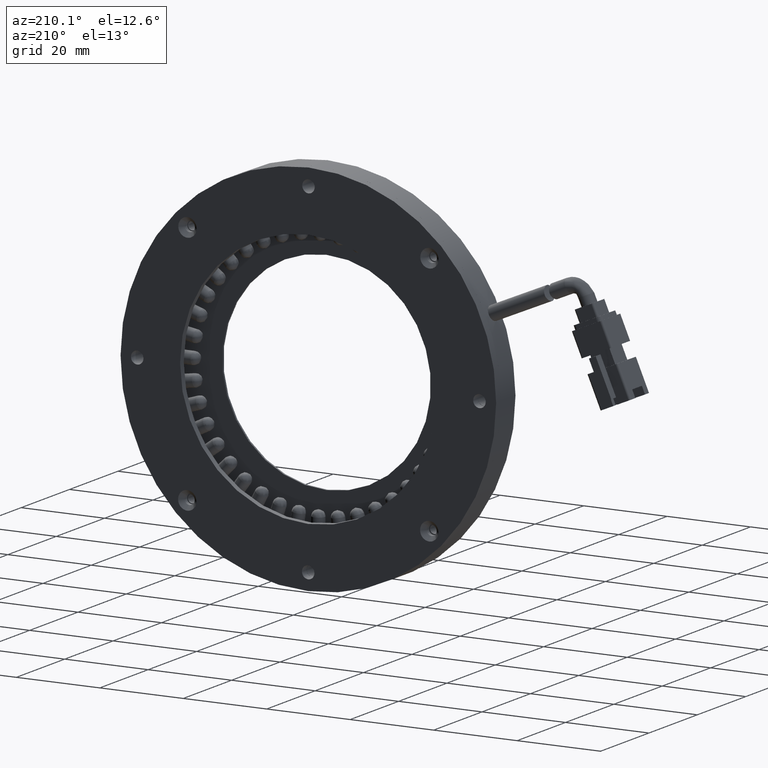
[diagram: clean part render]
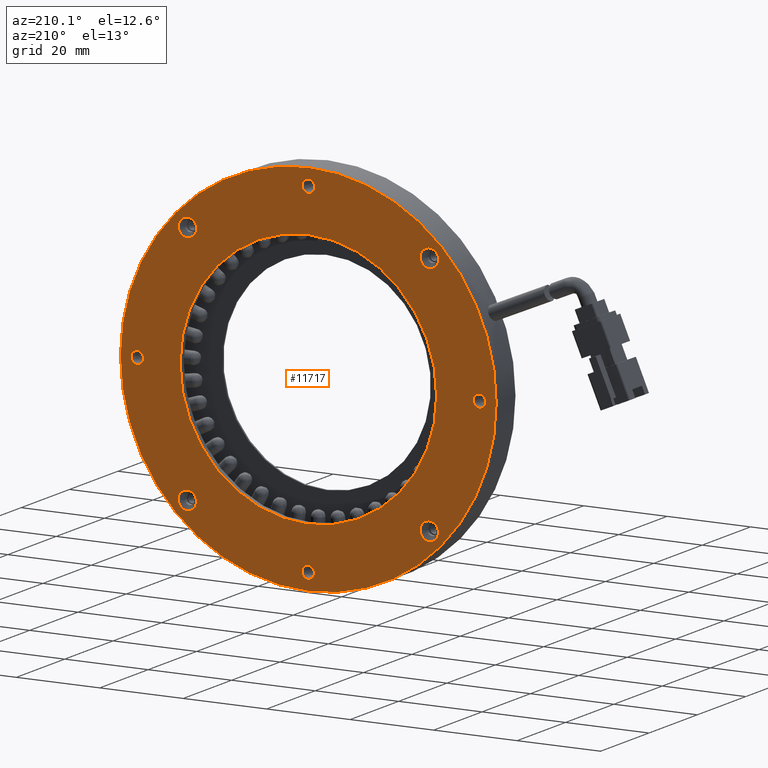
[diagram: same view with one face highlighted and labeled with its STEP entity id]
A machine part, auxiliary view. The second image highlights one B-rep face of the part: STEP entity #11717.
In plain terms, the highlighted planar face has unit normal (0, -1, 0).
Its self-contained STEP definition (entity closure, byte-faithful):
#245 = DIRECTION ( 'NONE',  ( -1.163897087407499700E-016, 1.000000000000000000, -2.939373556709199600E-017 ) ) ;
#446 = FACE_OUTER_BOUND ( 'NONE', #17321, .T. ) ;
#608 = CIRCLE ( 'NONE', #7499, 1.499999999999996700 ) ;
#1196 = EDGE_CURVE ( 'NONE', #20708, #14340, #3406, .T. ) ;
#1226 = EDGE_CURVE ( 'NONE', #38113, #23589, #13167, .T. ) ;
#1408 = CARTESIAN_POINT ( 'NONE',  ( 34.14104945310195700, 7.623552123552124200, -27.41055050798560400 ) ) ;
#1472 = FACE_BOUND ( 'NONE', #2171, .T. ) ;
#1908 = DIRECTION ( 'NONE',  ( -1.163897087407499700E-016, 1.000000000000000000, -2.939373556709199600E-017 ) ) ;
#2171 = EDGE_LOOP ( 'NONE', ( #28088, #8177 ) ) ;
#2174 = EDGE_CURVE ( 'NONE', #6445, #8785, #30070, .T. ) ;
#2336 = DIRECTION ( 'NONE',  ( -0.7065235946279202500, 0.0000000000000000000, -0.7076894871580629000 ) ) ;
#2462 = DIRECTION ( 'NONE',  ( -1.163897087407499700E-016, 1.000000000000000000, -2.939373556709199600E-017 ) ) ;
#2539 = ORIENTED_EDGE ( 'NONE', *, *, #35327, .F. ) ;
#2794 = CIRCLE ( 'NONE', #12913, 2.199999999962528800 ) ;
#2841 = AXIS2_PLACEMENT_3D ( 'NONE', #10261, #32289, #13397 ) ;
#3036 = DIRECTION ( 'NONE',  ( -1.163897087407499700E-016, 1.000000000000000000, -2.939373556709199600E-017 ) ) ;
#3216 = DIRECTION ( 'NONE',  ( 0.7065235946279214700, 0.0000000000000000000, 0.7076894871580619000 ) ) ;
#3235 = CARTESIAN_POINT ( 'NONE',  ( -38.48834288763067900, 7.623552123552118000, -1.095335061818644200 ) ) ;
#3294 = CIRCLE ( 'NONE', #8161, 30.74000000000000200 ) ;
#3359 = VERTEX_POINT ( 'NONE', #4825 ) ;
#3406 = CIRCLE ( 'NONE', #33722, 30.74000000000000200 ) ;
#3487 = DIRECTION ( 'NONE',  ( -1.163897087407499700E-016, 1.000000000000000000, -2.939373556709199600E-017 ) ) ;
#3584 = CARTESIAN_POINT ( 'NONE',  ( -25.44384040205195800, 7.623552123608962300, 28.96746737974478900 ) ) ;
#3693 = CARTESIAN_POINT ( 'NONE',  ( 32.53889595117335900, 7.623552123552126000, 29.01526897348052700 ) ) ;
#3789 = ORIENTED_EDGE ( 'NONE', *, *, #27956, .F. ) ;
#3966 = CARTESIAN_POINT ( 'NONE',  ( 3.605229402510262900, 7.623552123552121500, -40.99998606711737600 ) ) ;
#4019 = ORIENTED_EDGE ( 'NONE', *, *, #21247, .F. ) ;
#4044 = CIRCLE ( 'NONE', #10319, 2.200000000016186800 ) ;
#4131 = EDGE_LOOP ( 'NONE', ( #3789, #32966 ) ) ;
#4147 = EDGE_CURVE ( 'NONE', #13625, #28715, #37057, .T. ) ;
#4194 = CARTESIAN_POINT ( 'NONE',  ( 31.03234563671623300, 7.623552123552124200, -30.52438425150398500 ) ) ;
#4396 = ORIENTED_EDGE ( 'NONE', *, *, #35898, .F. ) ;
#4538 = ORIENTED_EDGE ( 'NONE', *, *, #20959, .F. ) ;
#4825 = CARTESIAN_POINT ( 'NONE',  ( 4.597413132288457900, 7.623552123552124200, 42.06152029785445700 ) ) ;
#4857 = CARTESIAN_POINT ( 'NONE',  ( -36.36877210374692700, 7.623552123552118000, 1.027733399655528000 ) ) ;
#6265 = EDGE_CURVE ( 'NONE', #20080, #26323, #608, .T. ) ;
#6445 = VERTEX_POINT ( 'NONE', #8220 ) ;
#6835 = DIRECTION ( 'NONE',  ( 0.7065235946279213600, 0.0000000000000000000, 0.7076894871580619000 ) ) ;
#6860 = CARTESIAN_POINT ( 'NONE',  ( 2.545444010568383800, 7.623552123552121500, -42.06152029785446400 ) ) ;
#7127 = DIRECTION ( 'NONE',  ( -0.7065235946279202500, 0.0000000000000000000, -0.7076894871580629000 ) ) ;
#7128 = EDGE_CURVE ( 'NONE', #22568, #32161, #7828, .T. ) ;
#7499 = AXIS2_PLACEMENT_3D ( 'NONE', #3966, #25916, #7127 ) ;
#7828 = CIRCLE ( 'NONE', #2841, 2.199999999956160100 ) ;
#7838 = FACE_BOUND ( 'NONE', #11013, .T. ) ;
#8161 = AXIS2_PLACEMENT_3D ( 'NONE', #17240, #39320, #20415 ) ;
#8177 = ORIENTED_EDGE ( 'NONE', *, *, #37195, .F. ) ;
#8220 = CARTESIAN_POINT ( 'NONE',  ( -23.84168690016127100, 7.623552123495273700, -27.45835210175930300 ) ) ;
#8723 = CARTESIAN_POINT ( 'NONE',  ( -37.42855749568880700, 7.623552123552118000, -0.03380083108155823600 ) ) ;
#8780 = CARTESIAN_POINT ( 'NONE',  ( -37.42855749568880700, 7.623552123552118000, -0.03380083108155823600 ) ) ;
#8785 = VERTEX_POINT ( 'NONE', #37097 ) ;
#8937 = VERTEX_POINT ( 'NONE', #3235 ) ;
#8956 = ORIENTED_EDGE ( 'NONE', *, *, #2174, .F. ) ;
#9175 = ORIENTED_EDGE ( 'NONE', *, *, #21126, .F. ) ;
#9432 = CARTESIAN_POINT ( 'NONE',  ( -28.27459835068420100, 7.623552123552118900, 31.79356175825647700 ) ) ;
#9530 = CIRCLE ( 'NONE', #15172, 45.00000000000000000 ) ;
#9744 = CARTESIAN_POINT ( 'NONE',  ( 3.571428571428565800, 7.623552123552121500, 0.0000000000000000000 ) ) ;
#9861 = EDGE_CURVE ( 'NONE', #40588, #10768, #4044, .T. ) ;
#10070 = AXIS2_PLACEMENT_3D ( 'NONE', #40042, #21113, #2336 ) ;
#10261 = CARTESIAN_POINT ( 'NONE',  ( 32.53889595117335900, 7.623552123552126000, 29.01526897348052700 ) ) ;
#10319 = AXIS2_PLACEMENT_3D ( 'NONE', #20680, #1908, #23848 ) ;
#10768 = VERTEX_POINT ( 'NONE', #1408 ) ;
#11013 = EDGE_LOOP ( 'NONE', ( #4019, #2539 ) ) ;
#11263 = CARTESIAN_POINT ( 'NONE',  ( 3.571428571428565800, 7.623552123552121500, 0.0000000000000000000 ) ) ;
#11717 = ADVANCED_FACE ( 'NONE', ( #446, #25474, #33916, #18097, #34891, #1472, #32929, #24498, #16117, #7838 ), #34504, .F. ) ;
#11872 = DIRECTION ( 'NONE',  ( -0.7065235946279214700, 0.0000000000000000000, -0.7076894871580617900 ) ) ;
#11932 = DIRECTION ( 'NONE',  ( -0.7065235946279214700, 0.0000000000000000000, -0.7076894871580617900 ) ) ;
#12283 = DIRECTION ( 'NONE',  ( 0.7065235946279214700, 0.0000000000000000000, 0.7076894871580617900 ) ) ;
#12560 = DIRECTION ( 'NONE',  ( -0.7065235946279216900, -1.030337130463465200E-016, -0.7076894871580615700 ) ) ;
#12615 = CIRCLE ( 'NONE', #26582, 2.199999999956160100 ) ;
#12621 = DIRECTION ( 'NONE',  ( -1.163897087407499700E-016, 1.000000000000000000, -2.939373556709199600E-017 ) ) ;
#12733 = EDGE_LOOP ( 'NONE', ( #18719, #4538 ) ) ;
#12890 = DIRECTION ( 'NONE',  ( 0.7065235946279216900, 9.637352644315595200E-017, 0.7076894871580614600 ) ) ;
#12913 = AXIS2_PLACEMENT_3D ( 'NONE', #15011, #37083, #18165 ) ;
#12924 = EDGE_LOOP ( 'NONE', ( #17739, #19213 ) ) ;
#12929 = CARTESIAN_POINT ( 'NONE',  ( 35.36499032968504300, 7.623552123552126000, 31.84602692211276700 ) ) ;
#12954 = DIRECTION ( 'NONE',  ( -1.163897087407499700E-016, 1.000000000000000000, -2.939373556709199600E-017 ) ) ;
#13019 = EDGE_CURVE ( 'NONE', #3359, #15733, #39519, .T. ) ;
#13167 = CIRCLE ( 'NONE', #18110, 1.499999999999995600 ) ;
#13397 = DIRECTION ( 'NONE',  ( 0.7065235946279213600, 0.0000000000000000000, 0.7076894871580619000 ) ) ;
#13625 = VERTEX_POINT ( 'NONE', #14057 ) ;
#14057 = CARTESIAN_POINT ( 'NONE',  ( -23.88948849389925000, 7.623552123608962300, 30.52438425146375400 ) ) ;
#14271 = DIRECTION ( 'NONE',  ( 0.7065235946279216900, 1.128642469731169200E-016, 0.7076894871580616800 ) ) ;
#14289 = CARTESIAN_POINT ( 'NONE',  ( 25.28996387029088000, 7.623552123552125100, 21.75437483523881700 ) ) ;
#14340 = VERTEX_POINT ( 'NONE', #14289 ) ;
#14446 = EDGE_CURVE ( 'NONE', #23589, #38113, #23467, .T. ) ;
#14536 = CIRCLE ( 'NONE', #22865, 1.499999999999994400 ) ;
#14620 = AXIS2_PLACEMENT_3D ( 'NONE', #21227, #2462, #24380 ) ;
#15011 = CARTESIAN_POINT ( 'NONE',  ( -25.39603880831622700, 7.623552123495273700, -29.01526897348052400 ) ) ;
#15172 = AXIS2_PLACEMENT_3D ( 'NONE', #9744, #31771, #12890 ) ;
#15280 = CARTESIAN_POINT ( 'NONE',  ( 43.51162924660406600, 7.623552123552127700, -1.027733399655238700 ) ) ;
#15733 = VERTEX_POINT ( 'NONE', #32886 ) ;
#15833 = VERTEX_POINT ( 'NONE', #4857 ) ;
#15859 = DIRECTION ( 'NONE',  ( 1.163897087407499700E-016, -1.000000000000000000, 2.939373556709199600E-017 ) ) ;
#15978 = DIRECTION ( 'NONE',  ( -1.163897087407499700E-016, 1.000000000000000000, -2.939373556709199600E-017 ) ) ;
#16117 = FACE_BOUND ( 'NONE', #21267, .T. ) ;
#16263 = EDGE_LOOP ( 'NONE', ( #9175, #27563 ) ) ;
#16666 = CARTESIAN_POINT ( 'NONE',  ( -28.22213318682790400, 7.623552123552117100, -31.84602692211277400 ) ) ;
#17240 = CARTESIAN_POINT ( 'NONE',  ( 3.571428571428565800, 7.623552123552121500, 0.0000000000000000000 ) ) ;
#17321 = EDGE_LOOP ( 'NONE', ( #33538, #22964 ) ) ;
#17500 = EDGE_CURVE ( 'NONE', #26323, #20080, #14536, .T. ) ;
#17710 = CARTESIAN_POINT ( 'NONE',  ( -25.44384040205195800, 7.623552123608962300, 28.96746737974478900 ) ) ;
#17739 = ORIENTED_EDGE ( 'NONE', *, *, #14446, .F. ) ;
#17920 = CARTESIAN_POINT ( 'NONE',  ( -25.39603880831622700, 7.623552123495273700, -29.01526897348052400 ) ) ;
#18097 = FACE_BOUND ( 'NONE', #39514, .T. ) ;
#18110 = AXIS2_PLACEMENT_3D ( 'NONE', #32729, #22034, #22164 ) ;
#18165 = DIRECTION ( 'NONE',  ( 0.7065235946279214700, 0.0000000000000000000, 0.7076894871580617900 ) ) ;
#18719 = ORIENTED_EDGE ( 'NONE', *, *, #7128, .F. ) ;
#19005 = CARTESIAN_POINT ( 'NONE',  ( 32.58669754490909300, 7.623552123552124200, -28.96746737974479700 ) ) ;
#19166 = AXIS2_PLACEMENT_3D ( 'NONE', #19005, #245, #22155 ) ;
#19213 = ORIENTED_EDGE ( 'NONE', *, *, #1226, .F. ) ;
#19670 = CARTESIAN_POINT ( 'NONE',  ( -18.14710672743374400, 7.623552123552118000, -21.75437483523882100 ) ) ;
#19770 = AXIS2_PLACEMENT_3D ( 'NONE', #17710, #39791, #20885 ) ;
#19977 = AXIS2_PLACEMENT_3D ( 'NONE', #8723, #30736, #11872 ) ;
#20080 = VERTEX_POINT ( 'NONE', #6860 ) ;
#20415 = DIRECTION ( 'NONE',  ( 0.7065235946279216900, 1.128642469731169200E-016, 0.7076894871580616800 ) ) ;
#20680 = CARTESIAN_POINT ( 'NONE',  ( 32.58669754490909300, 7.623552123552124200, -28.96746737974479700 ) ) ;
#20708 = VERTEX_POINT ( 'NONE', #19670 ) ;
#20768 = ORIENTED_EDGE ( 'NONE', *, *, #17500, .F. ) ;
#20797 = CIRCLE ( 'NONE', #10070, 1.499999999999996700 ) ;
#20885 = DIRECTION ( 'NONE',  ( 0.7065235946279214700, 0.0000000000000000000, 0.7076894871580619000 ) ) ;
#20959 = EDGE_CURVE ( 'NONE', #32161, #22568, #12615, .T. ) ;
#21113 = DIRECTION ( 'NONE',  ( -1.163897087407499700E-016, 1.000000000000000000, -2.939373556709199600E-017 ) ) ;
#21126 = EDGE_CURVE ( 'NONE', #14340, #20708, #3294, .T. ) ;
#21227 = CARTESIAN_POINT ( 'NONE',  ( 3.537627740346577500, 7.623552123552124200, 40.99998606711736900 ) ) ;
#21247 = EDGE_CURVE ( 'NONE', #8937, #15833, #21889, .T. ) ;
#21267 = EDGE_LOOP ( 'NONE', ( #28040, #20768 ) ) ;
#21797 = CARTESIAN_POINT ( 'NONE',  ( 44.57141463854593900, 7.623552123552127700, 0.03380083108184966900 ) ) ;
#21889 = CIRCLE ( 'NONE', #19977, 1.499999999999990500 ) ;
#22034 = DIRECTION ( 'NONE',  ( -1.163897087407499700E-016, 1.000000000000000000, -2.939373556709199600E-017 ) ) ;
#22046 = CARTESIAN_POINT ( 'NONE',  ( 34.09324785932381000, 7.623552123552126000, 30.57218584519723600 ) ) ;
#22155 = DIRECTION ( 'NONE',  ( 0.7065235946279214700, 0.0000000000000000000, 0.7076894871580616800 ) ) ;
#22164 = DIRECTION ( 'NONE',  ( -0.7065235946279235800, 0.0000000000000000000, -0.7076894871580596800 ) ) ;
#22568 = VERTEX_POINT ( 'NONE', #22046 ) ;
#22865 = AXIS2_PLACEMENT_3D ( 'NONE', #31501, #12621, #34691 ) ;
#22964 = ORIENTED_EDGE ( 'NONE', *, *, #35465, .F. ) ;
#23073 = ORIENTED_EDGE ( 'NONE', *, *, #9861, .F. ) ;
#23143 = AXIS2_PLACEMENT_3D ( 'NONE', #21797, #3036, #24960 ) ;
#23205 = VERTEX_POINT ( 'NONE', #12929 ) ;
#23467 = CIRCLE ( 'NONE', #23143, 1.499999999999994900 ) ;
#23589 = VERTEX_POINT ( 'NONE', #15280 ) ;
#23848 = DIRECTION ( 'NONE',  ( 0.7065235946279214700, 0.0000000000000000000, 0.7076894871580616800 ) ) ;
#24380 = DIRECTION ( 'NONE',  ( -0.7065235946279192500, 0.0000000000000000000, -0.7076894871580640100 ) ) ;
#24402 = ORIENTED_EDGE ( 'NONE', *, *, #26948, .F. ) ;
#24407 = CARTESIAN_POINT ( 'NONE',  ( 4.665014794452143400, 7.623552123552121500, -39.93845183638028800 ) ) ;
#24498 = FACE_BOUND ( 'NONE', #12924, .T. ) ;
#24960 = DIRECTION ( 'NONE',  ( -0.7065235946279239100, 0.0000000000000000000, -0.7076894871580593500 ) ) ;
#25164 = AXIS2_PLACEMENT_3D ( 'NONE', #8780, #30787, #11932 ) ;
#25474 = FACE_BOUND ( 'NONE', #16263, .T. ) ;
#25634 = DIRECTION ( 'NONE',  ( -1.163897087407499700E-016, 1.000000000000000000, -2.939373556709199600E-017 ) ) ;
#25916 = DIRECTION ( 'NONE',  ( -1.163897087407499700E-016, 1.000000000000000000, -2.939373556709199600E-017 ) ) ;
#26323 = VERTEX_POINT ( 'NONE', #24407 ) ;
#26582 = AXIS2_PLACEMENT_3D ( 'NONE', #3693, #25634, #6835 ) ;
#26948 = EDGE_CURVE ( 'NONE', #8785, #6445, #2794, .T. ) ;
#27563 = ORIENTED_EDGE ( 'NONE', *, *, #1196, .F. ) ;
#27956 = EDGE_CURVE ( 'NONE', #15733, #3359, #20797, .T. ) ;
#28040 = ORIENTED_EDGE ( 'NONE', *, *, #6265, .F. ) ;
#28088 = ORIENTED_EDGE ( 'NONE', *, *, #4147, .F. ) ;
#28715 = VERTEX_POINT ( 'NONE', #37072 ) ;
#29393 = CIRCLE ( 'NONE', #19770, 2.199999999959346900 ) ;
#30070 = CIRCLE ( 'NONE', #37236, 2.199999999962528800 ) ;
#30134 = CIRCLE ( 'NONE', #19166, 2.200000000016186800 ) ;
#30736 = DIRECTION ( 'NONE',  ( -1.163897087407499700E-016, 1.000000000000000000, -2.939373556709199600E-017 ) ) ;
#30787 = DIRECTION ( 'NONE',  ( -1.163897087407499700E-016, 1.000000000000000000, -2.939373556709199600E-017 ) ) ;
#30933 = CARTESIAN_POINT ( 'NONE',  ( 30.98454404302290400, 7.623552123552126000, 27.45835210176381500 ) ) ;
#31439 = DIRECTION ( 'NONE',  ( 1.163897087407499700E-016, -1.000000000000000000, 2.939373556709199600E-017 ) ) ;
#31501 = CARTESIAN_POINT ( 'NONE',  ( 3.605229402510262900, 7.623552123552121500, -40.99998606711737600 ) ) ;
#31609 = CIRCLE ( 'NONE', #25164, 1.499999999999990500 ) ;
#31771 = DIRECTION ( 'NONE',  ( 1.163897087407499700E-016, -1.000000000000000000, 2.939373556709199600E-017 ) ) ;
#32161 = VERTEX_POINT ( 'NONE', #30933 ) ;
#32238 = AXIS2_PLACEMENT_3D ( 'NONE', #9432, #31439, #12560 ) ;
#32289 = DIRECTION ( 'NONE',  ( -1.163897087407499700E-016, 1.000000000000000000, -2.939373556709199600E-017 ) ) ;
#32729 = CARTESIAN_POINT ( 'NONE',  ( 44.57141463854593900, 7.623552123552127700, 0.03380083108184966900 ) ) ;
#32886 = CARTESIAN_POINT ( 'NONE',  ( 2.477842348404698300, 7.623552123552124200, 39.93845183638028100 ) ) ;
#32891 = AXIS2_PLACEMENT_3D ( 'NONE', #34762, #15859, #37958 ) ;
#32929 = FACE_BOUND ( 'NONE', #4131, .T. ) ;
#32966 = ORIENTED_EDGE ( 'NONE', *, *, #13019, .F. ) ;
#33538 = ORIENTED_EDGE ( 'NONE', *, *, #34980, .F. ) ;
#33590 = CIRCLE ( 'NONE', #32891, 45.00000000000000000 ) ;
#33722 = AXIS2_PLACEMENT_3D ( 'NONE', #11263, #15978, #14271 ) ;
#33916 = FACE_BOUND ( 'NONE', #12733, .T. ) ;
#34504 = PLANE ( 'NONE',  #32238 ) ;
#34691 = DIRECTION ( 'NONE',  ( -0.7065235946279192500, 0.0000000000000000000, -0.7076894871580640100 ) ) ;
#34762 = CARTESIAN_POINT ( 'NONE',  ( 3.571428571428565800, 7.623552123552121500, 0.0000000000000000000 ) ) ;
#34876 = CARTESIAN_POINT ( 'NONE',  ( 45.63120003048781800, 7.623552123552127700, 1.095335061818939500 ) ) ;
#34891 = FACE_BOUND ( 'NONE', #37051, .T. ) ;
#34980 = EDGE_CURVE ( 'NONE', #23205, #38215, #9530, .T. ) ;
#35327 = EDGE_CURVE ( 'NONE', #15833, #8937, #31609, .T. ) ;
#35465 = EDGE_CURVE ( 'NONE', #38215, #23205, #33590, .T. ) ;
#35592 = AXIS2_PLACEMENT_3D ( 'NONE', #3584, #3487, #3216 ) ;
#35898 = EDGE_CURVE ( 'NONE', #10768, #40588, #30134, .T. ) ;
#37051 = EDGE_LOOP ( 'NONE', ( #8956, #24402 ) ) ;
#37057 = CIRCLE ( 'NONE', #35592, 2.199999999959346900 ) ;
#37072 = CARTESIAN_POINT ( 'NONE',  ( -26.99819231020466100, 7.623552123608962300, 27.41055050802582100 ) ) ;
#37083 = DIRECTION ( 'NONE',  ( -1.163897087407499700E-016, 1.000000000000000000, -2.939373556709199600E-017 ) ) ;
#37097 = CARTESIAN_POINT ( 'NONE',  ( -26.95039071647118300, 7.623552123495273700, -30.57218584520174100 ) ) ;
#37195 = EDGE_CURVE ( 'NONE', #28715, #13625, #29393, .T. ) ;
#37236 = AXIS2_PLACEMENT_3D ( 'NONE', #17920, #12954, #12283 ) ;
#37958 = DIRECTION ( 'NONE',  ( 0.7065235946279216900, 9.637352644315595200E-017, 0.7076894871580614600 ) ) ;
#38113 = VERTEX_POINT ( 'NONE', #34876 ) ;
#38215 = VERTEX_POINT ( 'NONE', #16666 ) ;
#39320 = DIRECTION ( 'NONE',  ( -1.163897087407499700E-016, 1.000000000000000000, -2.939373556709199600E-017 ) ) ;
#39514 = EDGE_LOOP ( 'NONE', ( #4396, #23073 ) ) ;
#39519 = CIRCLE ( 'NONE', #14620, 1.499999999999994400 ) ;
#39791 = DIRECTION ( 'NONE',  ( -1.163897087407499700E-016, 1.000000000000000000, -2.939373556709199600E-017 ) ) ;
#40042 = CARTESIAN_POINT ( 'NONE',  ( 3.537627740346577500, 7.623552123552124200, 40.99998606711736900 ) ) ;
#40588 = VERTEX_POINT ( 'NONE', #4194 ) ;